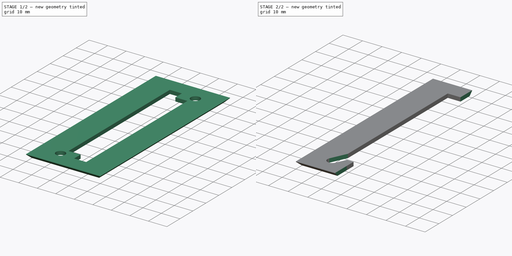
[diagram: build sequence overview — one tinted view per stage of 2, left to right]
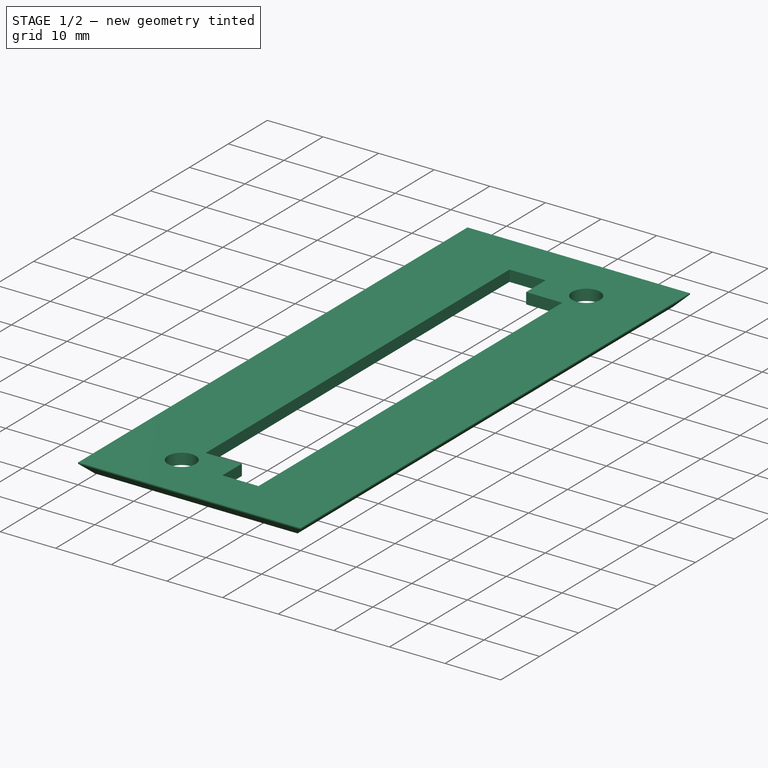
[diagram: stage 1 of 2 — iso view after this stage's code; geometry added in this stage tinted green]
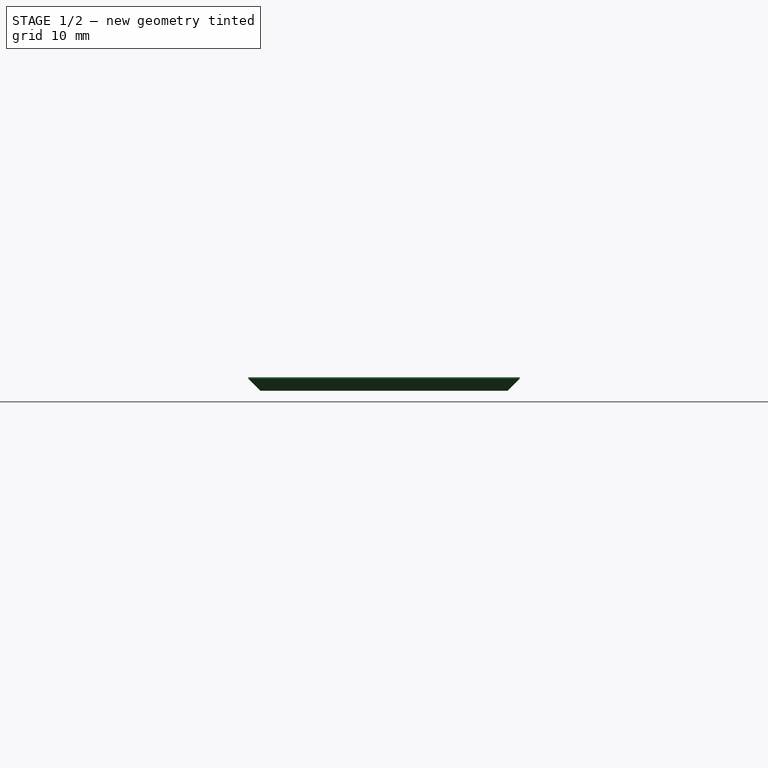
[diagram: stage 1 of 2 — front view after this stage's code; geometry added in this stage tinted green]
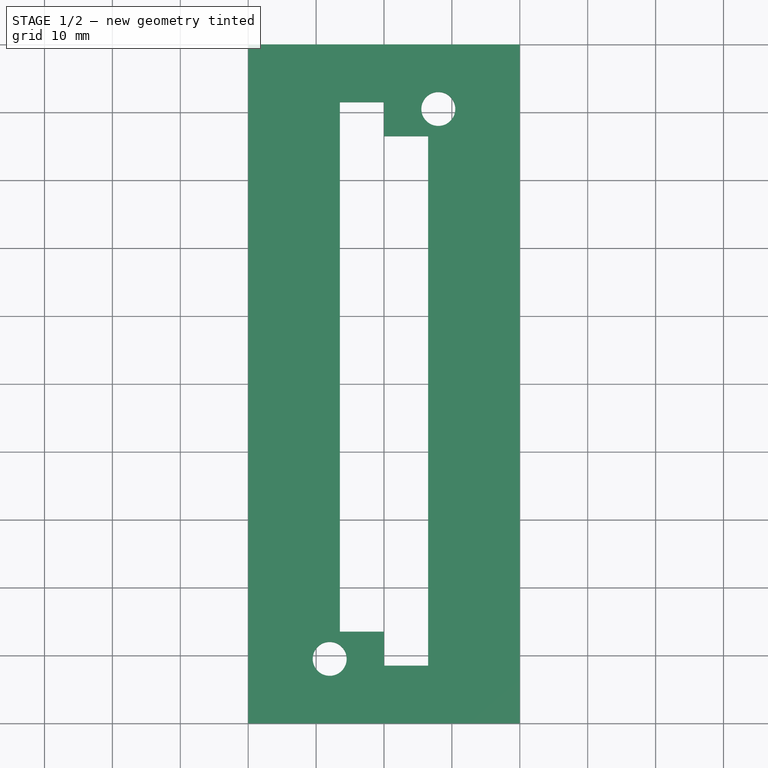
[diagram: stage 1 of 2 — top view after this stage's code; geometry added in this stage tinted green]
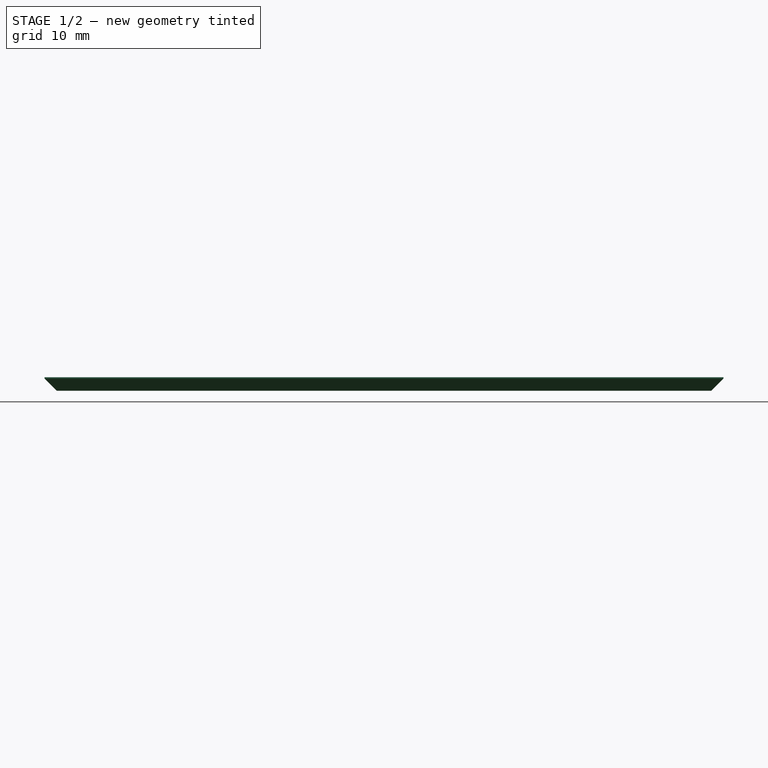
[diagram: stage 1 of 2 — right view after this stage's code; geometry added in this stage tinted green]
FCSTD DOCUMENT  (FreeCAD 0.20R29177 +426 (Git))
Label: kgm_plate2
License: All rights reserved
LicenseURL: http://en.wikipedia.org/wiki/All_rights_reserved
objects: PartDesign::SubtractiveBox×2, Sketcher::SketchObject×1, PartDesign::Pad×1, PartDesign::Chamfer×1, PartDesign::Body×1
note: 10 computed .brp shape members not serialized (recipe doc carries the construction recipe); baked Part::Feature solids carry a one-line shape summary decoded from their .brp

FEATURE [Sketcher::SketchObject] Sketch
  FullyConstrained = true
  MapMode = 5
  Support = -> [XY_Plane]
  sketch-geometry (18):
    g0: LineSegment StartX=20 StartY=50 StartZ=0 EndX=20 EndY=-50 EndZ=0
    g1: LineSegment StartX=-20 StartY=-50 StartZ=0 EndX=-20 EndY=50 EndZ=0
    g2: LineSegment StartX=6.5 StartY=-41.5 StartZ=0 EndX=6.5 EndY=36.5 EndZ=0
    g3: LineSegment StartX=-6.5 StartY=-36.5 StartZ=0 EndX=-6.5 EndY=41.5 EndZ=0
    g4: Circle CenterX=-8 CenterY=-40.5 CenterZ=0 NormalX=0 NormalY=0 NormalZ=1 AngleXU=0 Radius=2.5
    g5: Circle CenterX=8 CenterY=40.5 CenterZ=0 NormalX=0 NormalY=0 NormalZ=1 AngleXU=0 Radius=2.5
    g6: LineSegment StartX=-12.5 StartY=44.5 StartZ=0 EndX=12.5 EndY=44.5 EndZ=0
    g7: LineSegment StartX=12.5 StartY=44.5 StartZ=0 EndX=12.5 EndY=-44.5 EndZ=0
    g8: LineSegment StartX=12.5 StartY=-44.5 StartZ=0 EndX=-12.5 EndY=-44.5 EndZ=0
    g9: LineSegment StartX=-12.5 StartY=-44.5 StartZ=0 EndX=-12.5 EndY=44.5 EndZ=0
    g10: LineSegment StartX=-20 StartY=-50 StartZ=0 EndX=20 EndY=-50 EndZ=0
    g11: LineSegment StartX=20 StartY=50 StartZ=0 EndX=-20 EndY=50 EndZ=0
    g12: LineSegment StartX=-6.5 StartY=41.5 StartZ=0 EndX=0 EndY=41.5 EndZ=0
    g13: LineSegment StartX=0 StartY=41.5 StartZ=0 EndX=0 EndY=36.5 EndZ=0
    g14: LineSegment StartX=-6.5 StartY=-36.5 StartZ=0 EndX=0 EndY=-36.5 EndZ=0
    g15: LineSegment StartX=6.5 StartY=-41.5 StartZ=0 EndX=0 EndY=-41.5 EndZ=0
    g16: LineSegment StartX=0 StartY=-41.5 StartZ=0 EndX=0 EndY=-36.5 EndZ=0
    g17: LineSegment StartX=0 StartY=36.5 StartZ=0 EndX=6.5 EndY=36.5 EndZ=0
  constraints (54):
    c: Vertical(g0)
    c: Vertical(g1)
    c: Vertical(g2)
    c: Vertical(g3)
    c: Coincident(g6,g7)
    c: Coincident(g7,g8)
    c: Coincident(g8,g9)
    c: Coincident(g9,g6)
    c: Horizontal(g6)
    c: Horizontal(g8)
    c: Vertical(g7)
    c: Vertical(g9)
    c: DistanceX(g8,g8) = 25
    c: DistanceY(g8,g6) = 89
    c: DistanceY(g-1,g6) = 44.5
    c: DistanceX(g8,g-1) = 12.5
    c: Diameter(g5) = 5
    c: Diameter(g4) = 5
    c: DistanceX(g5,g6) = 4.5
    c: DistanceX(g4,g8) = -4.5
    c: DistanceY(g4,g8) = -4
    c: DistanceY(g6,g5) = -4
    c: DistanceX(g6,g2) = -6
    c: DistanceX(g8,g3) = 6
    c: DistanceY(g2,g6) = 8
    c: DistanceY(g8,g3) = 8
    c: PointOnObject(g13,g-2)
    c: DistanceY(g7,g2) = 3
    c: DistanceY(g3,g6) = 3
    c: Coincident(g10,g1)
    c: Coincident(g10,g0)
    c: Horizontal(g10)
    c: Coincident(g11,g0)
    c: Coincident(g11,g1)
    c: Horizontal(g11)
    c: Coincident(g12,g3)
    c: PointOnObject(g12,g-2)
    c: Horizontal(g12)
    c: Coincident(g13,g12)
    c: Coincident(g14,g3)
    c: PointOnObject(g14,g-2)
    c: Horizontal(g14)
    c: Coincident(g15,g2)
    c: PointOnObject(g15,g-2)
    c: Horizontal(g15)
    c: Coincident(g16,g15)
    c: Coincident(g16,g14)
    c: DistanceX(g11,g11) = 40
    c: DistanceY(g0,g0) = 100
    c: DistanceX(g1,g-1) = 20
    c: DistanceY(g-1,g0) = 50
    c: Coincident(g17,g13)
    c: Coincident(g17,g2)
    c: Horizontal(g17)
FEATURE [PartDesign::Pad] Pad
  Direction = (0,0,1)
  Length = 2
  Length2 = 10
  Profile = -> Sketch
  ReferenceAxis = -> Sketch [N_Axis]
  Type = 0
FEATURE [PartDesign::Chamfer] Chamfer
  Angle = 45
  Base = -> Pad [Edge9,Edge6,Edge3,Edge11]
  BaseFeature = -> Pad
  ChamferType = 0
  FlipDirection = false
  Size = 1.8
  Size2 = 1
  SupportTransform = false
  UseAllEdges = false
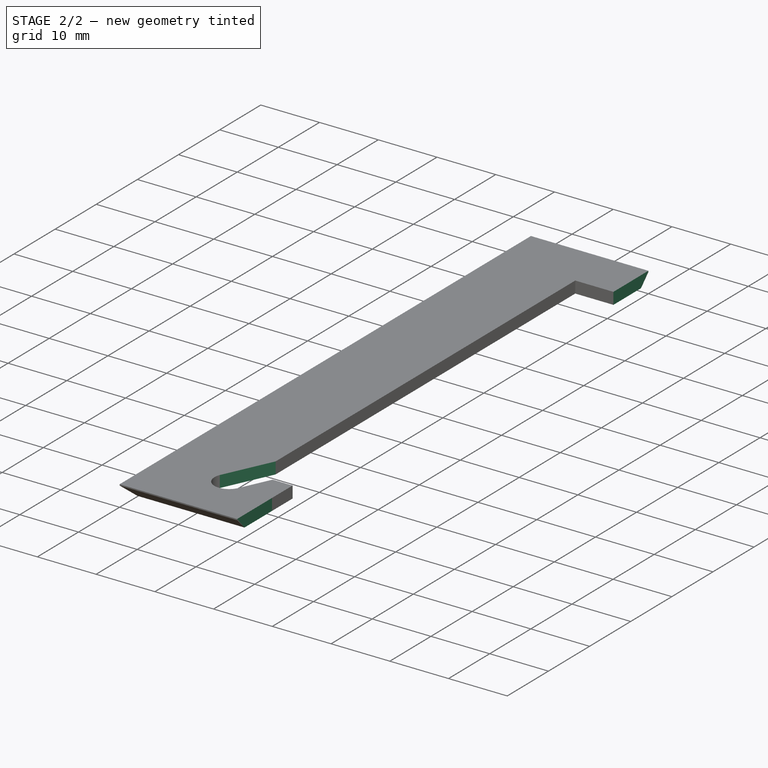
[diagram: stage 2 of 2 — iso view after this stage's code; geometry added in this stage tinted green]
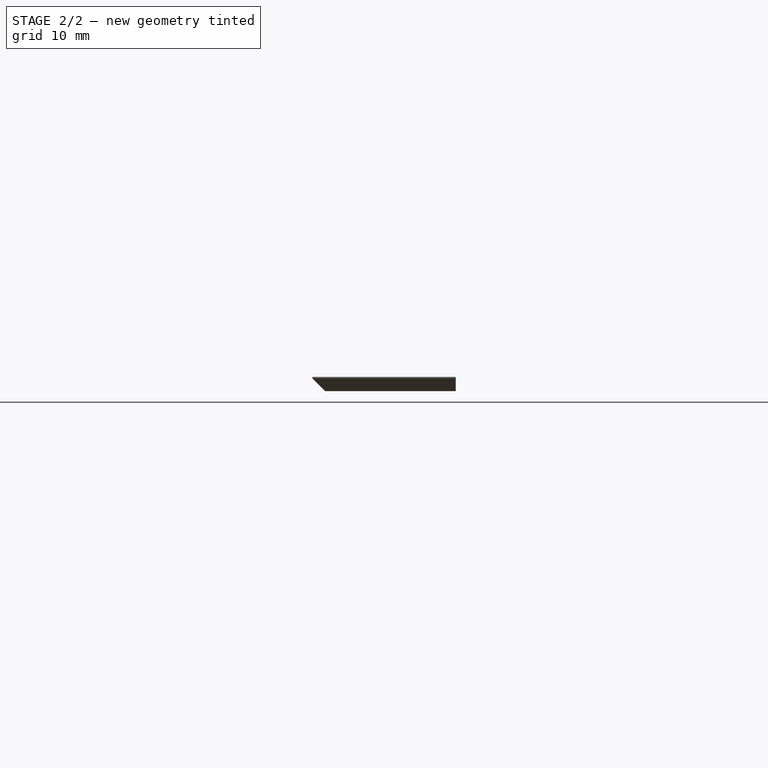
[diagram: stage 2 of 2 — front view after this stage's code; geometry added in this stage tinted green]
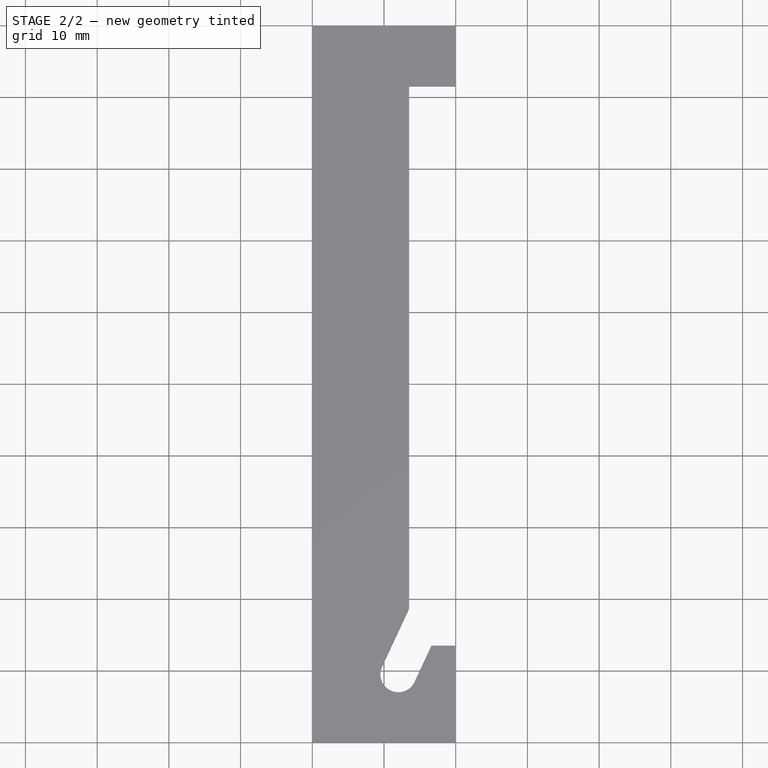
[diagram: stage 2 of 2 — top view after this stage's code; geometry added in this stage tinted green]
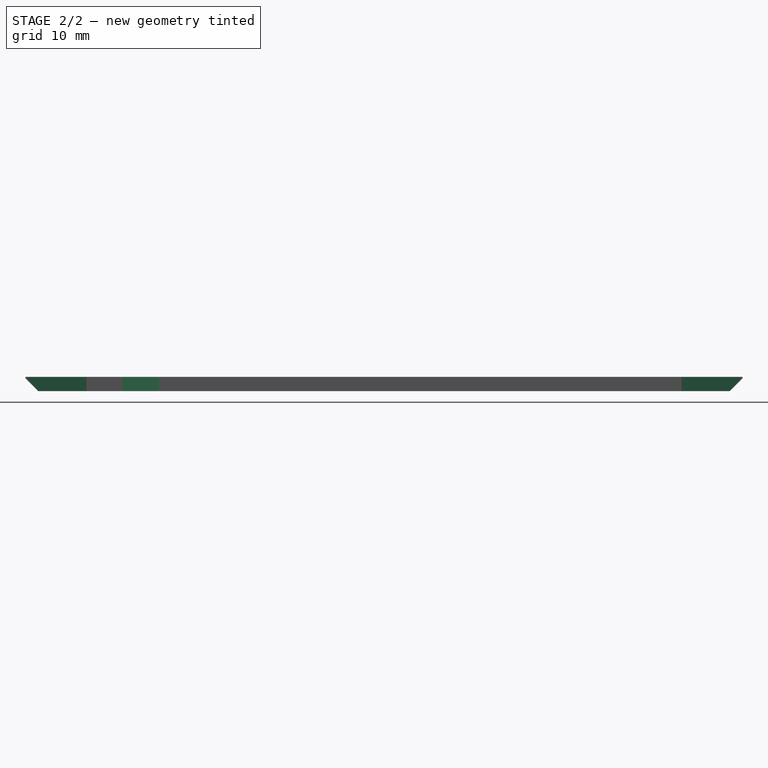
[diagram: stage 2 of 2 — right view after this stage's code; geometry added in this stage tinted green]
FEATURE [PartDesign::SubtractiveBox] Box
  AttacherType = Attacher::AttachEngine3D
  AttachmentOffset = pos=(0,-58,-4) rot=(0,0,1;0rad)
  BaseFeature = -> Chamfer
  Height = 7
  Length = 22
  MapMode = 5
  Placement = pos=(0,58,4) rot=(1,0,0;3.14159rad)
  Support = -> [Chamfer]
  Width = 119
FEATURE [PartDesign::SubtractiveBox] Box001
  AttacherType = Attacher::AttachEngine3D
  AttachmentOffset = pos=(1,2.3,0) rot=(0,0,-1;2.00713rad)
  BaseFeature = -> Box
  Height = 2
  Length = 5
  MapMode = 11
  Placement = pos=(-10.3,-39.5,-1.23e-14) rot=(0,0,-1;0.436332rad)
  Support = -> [Box]
  Width = 9
FEATURE [PartDesign::Body] Body
  Group = -> [Sketch,Pad,Chamfer,Box,Box001]
  Origin = -> Origin
  Tip = -> Box001
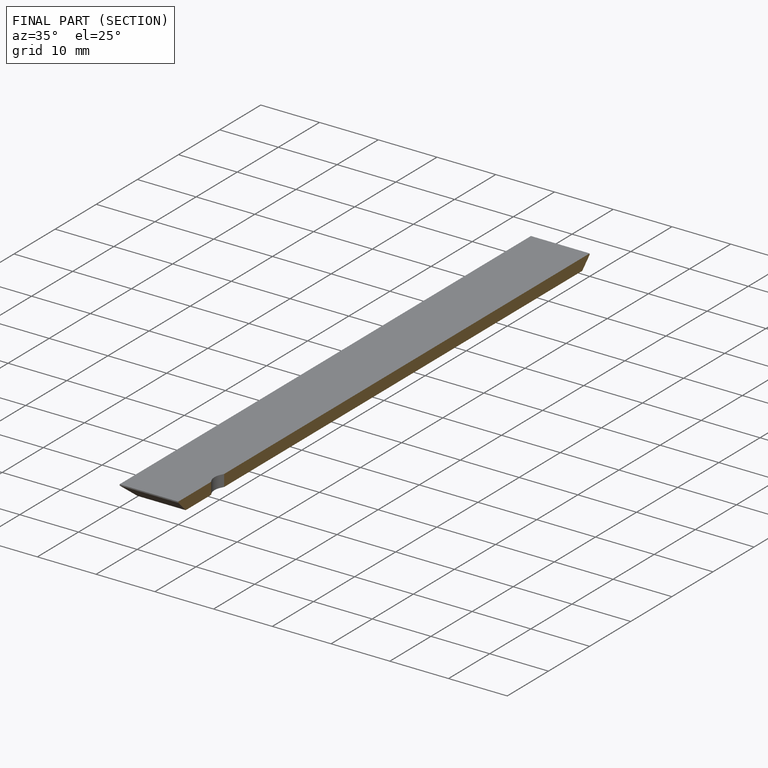
[diagram: finished part — half-section view (interior)]
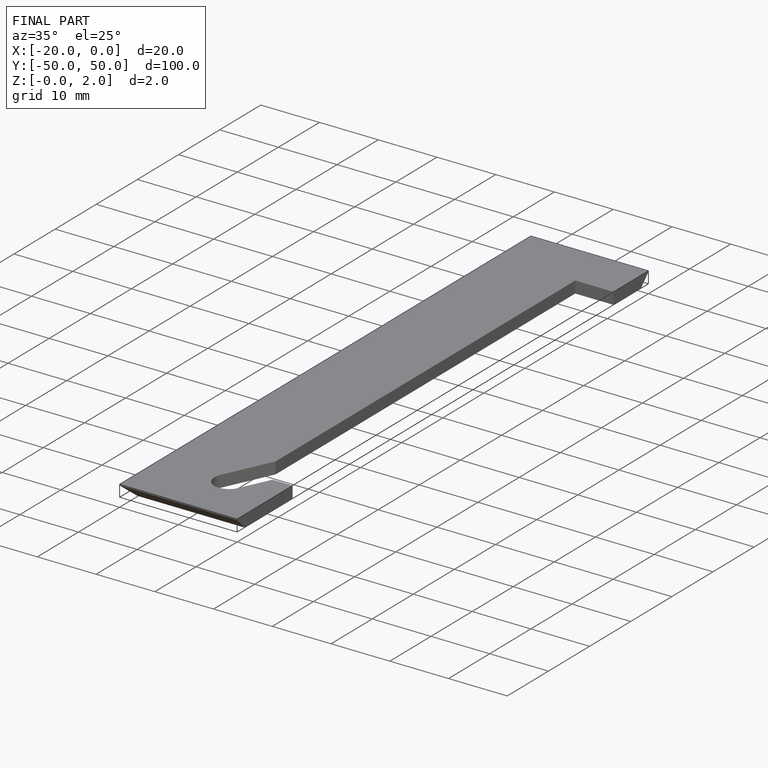
[diagram: finished part — iso view with bounding-box wireframe]
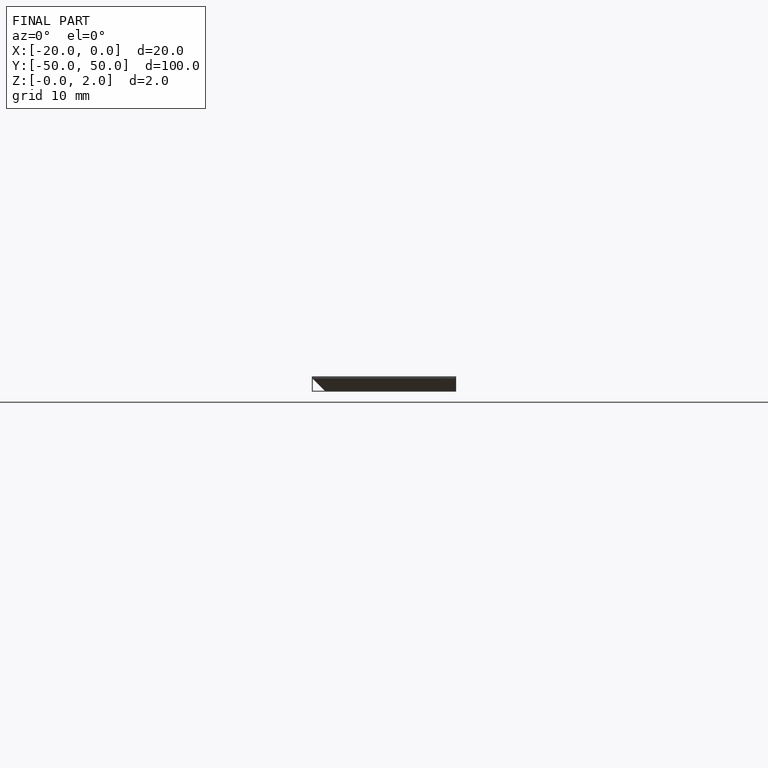
[diagram: finished part — front view with bounding-box wireframe]
